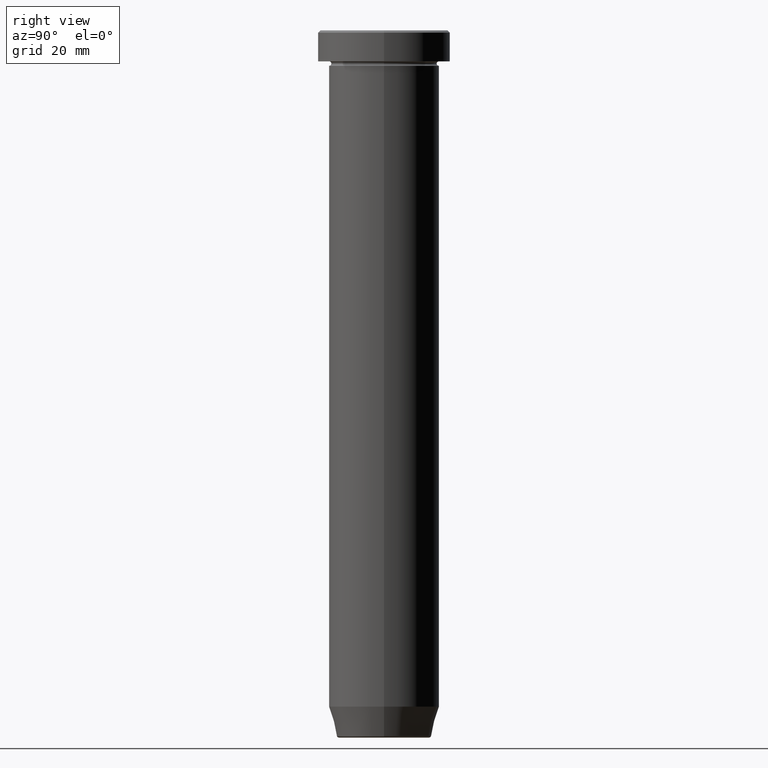
[diagram: clean part render]
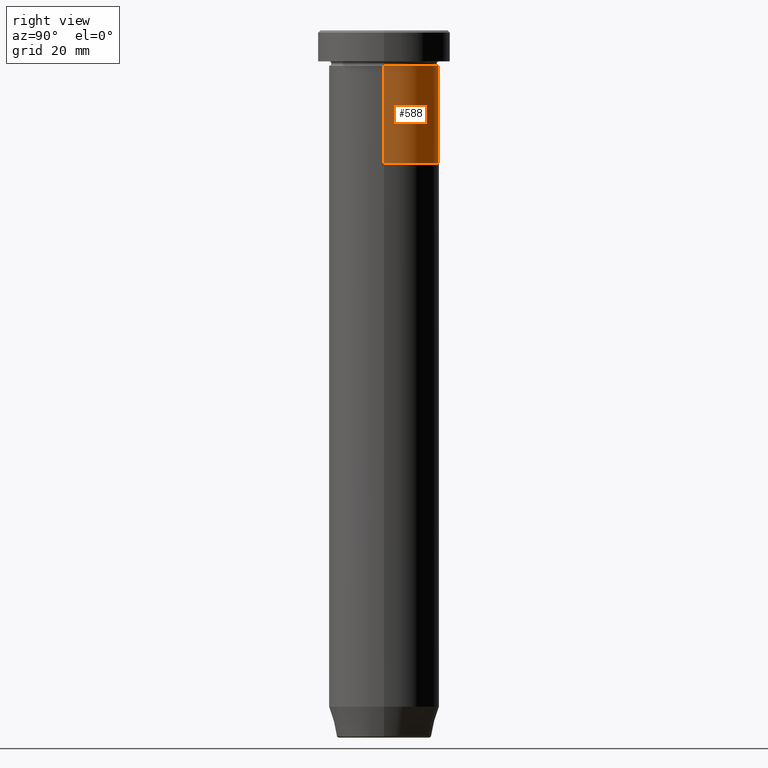
[diagram: same view with one face highlighted and labeled with its STEP entity id]
A machine part, right view. The second image highlights one B-rep face of the part: STEP entity #588.
In plain terms, the highlighted cylindrical surface (partial cylindrical patch) has radius 12.5 mm, axis along (-0, -0, 1).
Its self-contained STEP definition (entity closure, byte-faithful):
#38 = VERTEX_POINT ( 'NONE', #301 ) ;
#43 = DIRECTION ( 'NONE',  ( 1.000000000000000000, 0.000000000000000000, 0.000000000000000000 ) ) ;
#72 = FACE_OUTER_BOUND ( 'NONE', #526, .T. ) ;
#87 = AXIS2_PLACEMENT_3D ( 'NONE', #288, #429, #570 ) ;
#100 = CIRCLE ( 'NONE', #87, 12.50000000000000000 ) ;
#130 = VECTOR ( 'NONE', #473, 1000.000000000000000 ) ;
#132 = CIRCLE ( 'NONE', #328, 12.50000000000000000 ) ;
#139 = DIRECTION ( 'NONE',  ( -0.000000000000000000, -0.000000000000000000, 1.000000000000000000 ) ) ;
#140 = VERTEX_POINT ( 'NONE', #174 ) ;
#152 = ORIENTED_EDGE ( 'NONE', *, *, #443, .F. ) ;
#153 = CARTESIAN_POINT ( 'NONE',  ( -12.50000000000000000, 1.530808498934191521E-15, 0.000000000000000000 ) ) ;
#174 = CARTESIAN_POINT ( 'NONE',  ( 12.50000000000000000, 0.000000000000000000, -30.00000000000000000 ) ) ;
#201 = EDGE_CURVE ( 'NONE', #140, #38, #132, .T. ) ;
#231 = CARTESIAN_POINT ( 'NONE',  ( 0.000000000000000000, 0.000000000000000000, -30.00000000000000000 ) ) ;
#239 = LINE ( 'NONE', #153, #130 ) ;
#245 = DIRECTION ( 'NONE',  ( -0.000000000000000000, -0.000000000000000000, 1.000000000000000000 ) ) ;
#260 = CARTESIAN_POINT ( 'NONE',  ( 0.000000000000000000, 0.000000000000000000, 0.000000000000000000 ) ) ;
#262 = DIRECTION ( 'NONE',  ( 1.000000000000000000, 0.000000000000000000, 0.000000000000000000 ) ) ;
#284 = CARTESIAN_POINT ( 'NONE',  ( -12.50000000000000000, 1.530808498934191521E-15, -8.000000000000000000 ) ) ;
#288 = CARTESIAN_POINT ( 'NONE',  ( 0.000000000000000000, 0.000000000000000000, -8.000000000000000000 ) ) ;
#298 = CARTESIAN_POINT ( 'NONE',  ( 12.50000000000000000, 0.000000000000000000, 0.000000000000000000 ) ) ;
#301 = CARTESIAN_POINT ( 'NONE',  ( -12.50000000000000000, 1.530808498934191521E-15, -30.00000000000000000 ) ) ;
#318 = AXIS2_PLACEMENT_3D ( 'NONE', #260, #358, #262 ) ;
#328 = AXIS2_PLACEMENT_3D ( 'NONE', #231, #139, #43 ) ;
#358 = DIRECTION ( 'NONE',  ( -0.000000000000000000, -0.000000000000000000, 1.000000000000000000 ) ) ;
#387 = VERTEX_POINT ( 'NONE', #565 ) ;
#392 = EDGE_CURVE ( 'NONE', #38, #475, #239, .T. ) ;
#393 = ORIENTED_EDGE ( 'NONE', *, *, #201, .T. ) ;
#411 = VECTOR ( 'NONE', #245, 1000.000000000000000 ) ;
#429 = DIRECTION ( 'NONE',  ( -0.000000000000000000, -0.000000000000000000, 1.000000000000000000 ) ) ;
#434 = EDGE_CURVE ( 'NONE', #387, #475, #100, .T. ) ;
#436 = LINE ( 'NONE', #298, #411 ) ;
#443 = EDGE_CURVE ( 'NONE', #140, #387, #436, .T. ) ;
#473 = DIRECTION ( 'NONE',  ( -0.000000000000000000, -0.000000000000000000, 1.000000000000000000 ) ) ;
#475 = VERTEX_POINT ( 'NONE', #284 ) ;
#518 = ORIENTED_EDGE ( 'NONE', *, *, #392, .T. ) ;
#526 = EDGE_LOOP ( 'NONE', ( #393, #518, #569, #152 ) ) ;
#533 = CYLINDRICAL_SURFACE ( 'NONE', #318, 12.50000000000000000 ) ;
#565 = CARTESIAN_POINT ( 'NONE',  ( 12.50000000000000000, 0.000000000000000000, -8.000000000000000000 ) ) ;
#569 = ORIENTED_EDGE ( 'NONE', *, *, #434, .F. ) ;
#570 = DIRECTION ( 'NONE',  ( 1.000000000000000000, 0.000000000000000000, 0.000000000000000000 ) ) ;
#588 = ADVANCED_FACE ( 'NONE', ( #72 ), #533, .T. ) ;